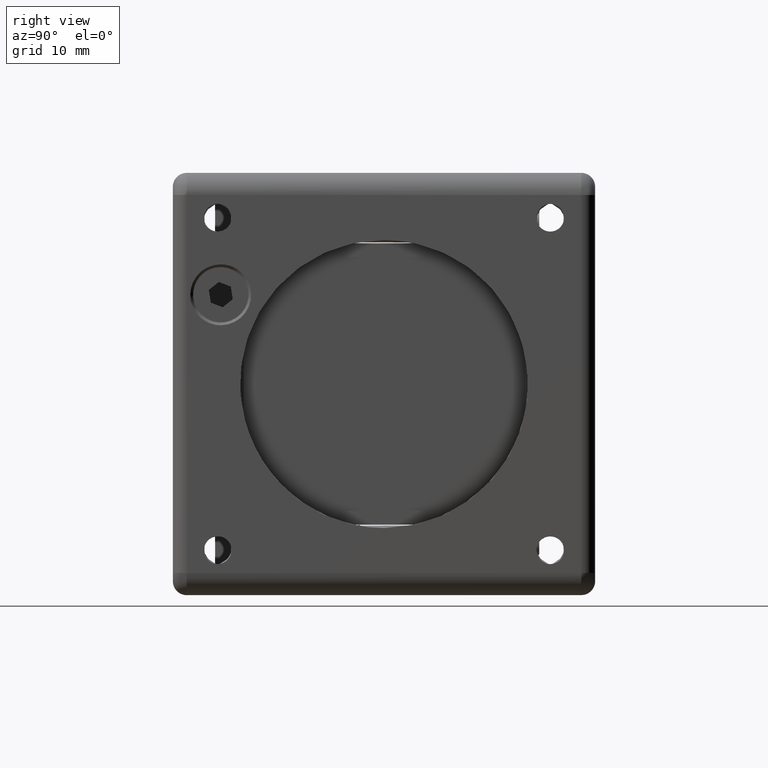
[diagram: clean part render]
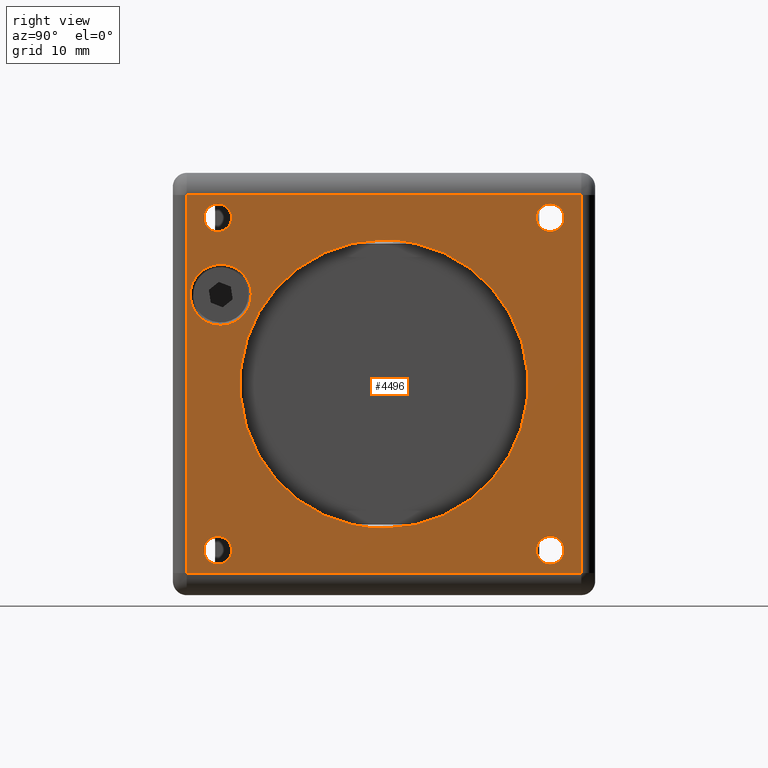
[diagram: same view with one face highlighted and labeled with its STEP entity id]
A machine part, right view. The second image highlights one B-rep face of the part: STEP entity #4496.
In plain terms, the highlighted face is a freeform B-spline surface patch.
Its self-contained STEP definition (entity closure, byte-faithful):
#53 = CARTESIAN_POINT ( 'NONE',  ( -310.8007940824679736, -4.194280474578479634, 55.14999999999999858 ) ) ;
#124 =( BOUNDED_CURVE ( )  B_SPLINE_CURVE ( 3, ( #5544, #6476, #1562, #6565 ),
 .UNSPECIFIED., .F., .F. ) 
 B_SPLINE_CURVE_WITH_KNOTS ( ( 4, 4 ),
 ( 0.000000000000000000, 1.000000000000000000 ),
 .UNSPECIFIED. ) 
 CURVE ( )  GEOMETRIC_REPRESENTATION_ITEM ( )  RATIONAL_B_SPLINE_CURVE ( ( 1.000000000000000000, 0.3333333333333329818, 0.3333333333333329818, 1.000000000000000000 ) ) 
 REPRESENTATION_ITEM ( '' )  );
#133 = FACE_BOUND ( 'NONE', #7682, .T. ) ;
#238 = EDGE_CURVE ( 'NONE', #7333, #3155, #4690, .T. ) ;
#248 = VERTEX_POINT ( 'NONE', #4404 ) ;
#271 = ORIENTED_EDGE ( 'NONE', *, *, #1703, .F. ) ;
#452 = ORIENTED_EDGE ( 'NONE', *, *, #8947, .F. ) ;
#454 =( BOUNDED_CURVE ( )  B_SPLINE_CURVE ( 3, ( #6399, #2153, #7972, #3747 ),
 .UNSPECIFIED., .F., .F. ) 
 B_SPLINE_CURVE_WITH_KNOTS ( ( 4, 4 ),
 ( 0.000000000000000000, 1.000000000000000000 ),
 .UNSPECIFIED. ) 
 CURVE ( )  GEOMETRIC_REPRESENTATION_ITEM ( )  RATIONAL_B_SPLINE_CURVE ( ( 1.000000000000000000, 0.3333333333333329818, 0.3333333333333329818, 1.000000000000000000 ) ) 
 REPRESENTATION_ITEM ( '' )  );
#483 =( BOUNDED_CURVE ( )  B_SPLINE_CURVE ( 3, ( #1865, #4816, #4034, #6859 ),
 .UNSPECIFIED., .F., .F. ) 
 B_SPLINE_CURVE_WITH_KNOTS ( ( 4, 4 ),
 ( 0.000000000000000000, 1.000000000000000000 ),
 .UNSPECIFIED. ) 
 CURVE ( )  GEOMETRIC_REPRESENTATION_ITEM ( )  RATIONAL_B_SPLINE_CURVE ( ( 1.000000000000000000, 0.3333333333333330373, 0.3333333333333330373, 1.000000000000000000 ) ) 
 REPRESENTATION_ITEM ( '' )  );
#516 = CARTESIAN_POINT ( 'NONE',  ( -310.8007940824682009, 26.08571952542150996, 51.85000000000025011 ) ) ;
#560 = CARTESIAN_POINT ( 'NONE',  ( -310.8007940824682009, 31.08571952542148864, 51.85000000000025011 ) ) ;
#591 = VERTEX_POINT ( 'NONE', #4769 ) ;
#871 = CARTESIAN_POINT ( 'NONE',  ( -310.8007940824679736, -1.414280474578490043, 24.34999999999959641 ) ) ;
#950 = CARTESIAN_POINT ( 'NONE',  ( -310.8007940824682009, -3.914280474578505586, 21.84999999999958931 ) ) ;
#1188 = CARTESIAN_POINT ( 'NONE',  ( -310.8007940824679736, -1.144280474578489804, 43.39999999999999858 ) ) ;
#1300 = EDGE_CURVE ( 'NONE', #7353, #591, #483, .T. ) ;
#1362 = EDGE_CURVE ( 'NONE', #1363, #4824, #7145, .T. ) ;
#1363 = VERTEX_POINT ( 'NONE', #2372 ) ;
#1420 = FACE_BOUND ( 'NONE', #6991, .T. ) ;
#1529 = CARTESIAN_POINT ( 'NONE',  ( -310.8007940824679736, 31.38571952542149646, 21.05000000000000071 ) ) ;
#1531 = CARTESIAN_POINT ( 'NONE',  ( -310.8007940824679736, -1.414280474578490043, 54.35000000000000142 ) ) ;
#1562 = CARTESIAN_POINT ( 'NONE',  ( -310.8007940824679736, -6.644280474578486029, 43.40000000000009805 ) ) ;
#1570 = ORIENTED_EDGE ( 'NONE', *, *, #9005, .F. ) ;
#1703 = EDGE_CURVE ( 'NONE', #4824, #2800, #8493, .T. ) ;
#1766 = CARTESIAN_POINT ( 'NONE',  ( -310.8007940824682009, 1.085719525421529941, 21.84999999999958931 ) ) ;
#1791 = ORIENTED_EDGE ( 'NONE', *, *, #7869, .F. ) ;
#1828 = CARTESIAN_POINT ( 'NONE',  ( -310.8007940824679736, -1.144280474578489804, 43.39999999999999858 ) ) ;
#1855 = B_SPLINE_CURVE_WITH_KNOTS ( 'NONE', 1,
 ( #2939, #53 ),
 .UNSPECIFIED., .F., .F.,
 ( 2, 2 ),
 ( -1.000000000000000000, 0.000000000000000000 ),
 .UNSPECIFIED. ) ;
#1865 = CARTESIAN_POINT ( 'NONE',  ( -310.8007940824679736, 28.58571952542149930, 24.34999999999959641 ) ) ;
#1931 = EDGE_CURVE ( 'NONE', #591, #7353, #5826, .T. ) ;
#1984 = EDGE_CURVE ( 'NONE', #3869, #4378, #124, .T. ) ;
#1995 = ORIENTED_EDGE ( 'NONE', *, *, #7356, .F. ) ;
#2018 = VERTEX_POINT ( 'NONE', #8044 ) ;
#2039 = EDGE_CURVE ( 'NONE', #2800, #4367, #1855, .T. ) ;
#2075 = CARTESIAN_POINT ( 'NONE',  ( -310.8007940824682009, 31.08571952542148864, 54.35000000000014353 ) ) ;
#2153 = CARTESIAN_POINT ( 'NONE',  ( -310.8007940824691104, -12.41428047457879025, 51.09999999999995168 ) ) ;
#2330 = CARTESIAN_POINT ( 'NONE',  ( -310.8007940824682009, 1.085719525421529941, 24.34999999999961418 ) ) ;
#2372 = CARTESIAN_POINT ( 'NONE',  ( -310.8007940824679736, 31.38571952542149646, 55.14999999999999858 ) ) ;
#2406 = CARTESIAN_POINT ( 'NONE',  ( -310.8007940824679736, -1.414280474578490043, 24.34999999999959641 ) ) ;
#2469 = CARTESIAN_POINT ( 'NONE',  ( -310.8007940824679736, 28.58571952542149930, 24.34999999999959641 ) ) ;
#2490 = B_SPLINE_SURFACE_WITH_KNOTS ( 'NONE', 1, 1, ( 
 ( #8560, #4281 ),
 ( #7814, #8644 ) ),
 .UNSPECIFIED., .F., .F., .F.,
 ( 2, 2 ),
 ( 2, 2 ),
 ( 0.000000000000000000, 1.000000000000000000 ),
 ( 0.000000000000000000, 1.000000000000000000 ),
 .UNSPECIFIED. ) ;
#2674 = CARTESIAN_POINT ( 'NONE',  ( -310.8007940824679736, 28.58571952542149930, 54.35000000000000142 ) ) ;
#2698 = CARTESIAN_POINT ( 'NONE',  ( -310.8007940824679736, 28.58571952542149930, 21.84999999999955023 ) ) ;
#2735 = CARTESIAN_POINT ( 'NONE',  ( -310.8007940824679736, 28.58571952542149930, 51.85000000000000142 ) ) ;
#2795 = CARTESIAN_POINT ( 'NONE',  ( -310.8007940824682009, 31.08571952542148864, 24.34999999999961418 ) ) ;
#2800 = VERTEX_POINT ( 'NONE', #8087 ) ;
#2804 = EDGE_CURVE ( 'NONE', #8557, #9094, #5883, .T. ) ;
#2862 = CARTESIAN_POINT ( 'NONE',  ( -310.8007940824679736, 31.38571952542149646, 21.05000000000000071 ) ) ;
#2939 = CARTESIAN_POINT ( 'NONE',  ( -310.8007940824679736, -4.194280474578479634, 21.05000000000000071 ) ) ;
#3026 =( BOUNDED_CURVE ( )  B_SPLINE_CURVE ( 3, ( #4461, #3764, #6194, #6148 ),
 .UNSPECIFIED., .F., .F. ) 
 B_SPLINE_CURVE_WITH_KNOTS ( ( 4, 4 ),
 ( 0.000000000000000000, 1.000000000000000000 ),
 .UNSPECIFIED. ) 
 CURVE ( )  GEOMETRIC_REPRESENTATION_ITEM ( )  RATIONAL_B_SPLINE_CURVE ( ( 1.000000000000000000, 0.3333333333333330373, 0.3333333333333330373, 1.000000000000000000 ) ) 
 REPRESENTATION_ITEM ( '' )  );
#3123 = CARTESIAN_POINT ( 'NONE',  ( -310.8007940824682009, -3.914280474578505586, 24.34999999999961418 ) ) ;
#3155 = VERTEX_POINT ( 'NONE', #7462 ) ;
#3264 = CARTESIAN_POINT ( 'NONE',  ( -310.8007940824679736, 28.58571952542149930, 54.35000000000000142 ) ) ;
#3279 = ORIENTED_EDGE ( 'NONE', *, *, #6731, .F. ) ;
#3374 = EDGE_LOOP ( 'NONE', ( #5366, #3279 ) ) ;
#3387 = VERTEX_POINT ( 'NONE', #1531 ) ;
#3493 = ORIENTED_EDGE ( 'NONE', *, *, #5746, .F. ) ;
#3698 = CARTESIAN_POINT ( 'NONE',  ( -310.8007940824679736, 31.38571952542149646, 55.14999999999999858 ) ) ;
#3701 = CARTESIAN_POINT ( 'NONE',  ( -310.8007940824684852, 13.58571952542149930, 25.09999999999859810 ) ) ;
#3747 = CARTESIAN_POINT ( 'NONE',  ( -310.8007940824684852, 13.58571952542149930, 25.09999999999859810 ) ) ;
#3764 = CARTESIAN_POINT ( 'NONE',  ( -310.8007940824682009, -3.914280474578524238, 54.35000000000014353 ) ) ;
#3869 = VERTEX_POINT ( 'NONE', #9104 ) ;
#3882 = EDGE_LOOP ( 'NONE', ( #6074, #452 ) ) ;
#4011 = EDGE_CURVE ( 'NONE', #3387, #2018, #3026, .T. ) ;
#4034 = CARTESIAN_POINT ( 'NONE',  ( -310.8007940824682009, 26.08571952542150996, 21.84999999999958931 ) ) ;
#4189 = CARTESIAN_POINT ( 'NONE',  ( -310.8007940824679736, -4.194280474578479634, 55.14999999999999858 ) ) ;
#4281 = CARTESIAN_POINT ( 'NONE',  ( -310.8007940824679736, -4.194280474578479634, 55.14999999999999858 ) ) ;
#4359 = CARTESIAN_POINT ( 'NONE',  ( -310.8007940824684852, 13.58571952542149930, 25.09999999999859810 ) ) ;
#4367 = VERTEX_POINT ( 'NONE', #4189 ) ;
#4378 = VERTEX_POINT ( 'NONE', #1188 ) ;
#4404 = CARTESIAN_POINT ( 'NONE',  ( -310.8007940824679736, 28.58571952542149930, 51.85000000000000142 ) ) ;
#4461 = CARTESIAN_POINT ( 'NONE',  ( -310.8007940824679736, -1.414280474578490043, 54.35000000000000142 ) ) ;
#4496 = ADVANCED_FACE ( 'NONE', ( #133, #6470, #6515, #5725, #8687, #1420, #5813 ), #2490, .T. ) ;
#4690 =( BOUNDED_CURVE ( )  B_SPLINE_CURVE ( 3, ( #4359, #7237, #5756, #8588 ),
 .UNSPECIFIED., .F., .F. ) 
 B_SPLINE_CURVE_WITH_KNOTS ( ( 4, 4 ),
 ( 0.000000000000000000, 1.000000000000000000 ),
 .UNSPECIFIED. ) 
 CURVE ( )  GEOMETRIC_REPRESENTATION_ITEM ( )  RATIONAL_B_SPLINE_CURVE ( ( 1.000000000000000000, 0.3333333333333329818, 0.3333333333333329818, 1.000000000000000000 ) ) 
 REPRESENTATION_ITEM ( '' )  );
#4769 = CARTESIAN_POINT ( 'NONE',  ( -310.8007940824679736, 28.58571952542149930, 21.84999999999955023 ) ) ;
#4816 = CARTESIAN_POINT ( 'NONE',  ( -310.8007940824682009, 26.08571952542150996, 24.34999999999961418 ) ) ;
#4824 = VERTEX_POINT ( 'NONE', #6674 ) ;
#4910 = ORIENTED_EDGE ( 'NONE', *, *, #1362, .F. ) ;
#4942 = CARTESIAN_POINT ( 'NONE',  ( -310.8007940824679736, 28.58571952542149930, 54.35000000000000142 ) ) ;
#5046 = CARTESIAN_POINT ( 'NONE',  ( -310.8007940824679736, 31.38571952542149646, 55.14999999999999858 ) ) ;
#5130 =( BOUNDED_CURVE ( )  B_SPLINE_CURVE ( 3, ( #2735, #560, #2075, #4942 ),
 .UNSPECIFIED., .F., .F. ) 
 B_SPLINE_CURVE_WITH_KNOTS ( ( 4, 4 ),
 ( 0.000000000000000000, 1.000000000000000000 ),
 .UNSPECIFIED. ) 
 CURVE ( )  GEOMETRIC_REPRESENTATION_ITEM ( )  RATIONAL_B_SPLINE_CURVE ( ( 1.000000000000000000, 0.3333333333333330373, 0.3333333333333330373, 1.000000000000000000 ) ) 
 REPRESENTATION_ITEM ( '' )  );
#5366 = ORIENTED_EDGE ( 'NONE', *, *, #238, .F. ) ;
#5374 = CARTESIAN_POINT ( 'NONE',  ( -310.8007940824679736, -1.414280474578490043, 24.34999999999959641 ) ) ;
#5404 = CARTESIAN_POINT ( 'NONE',  ( -310.8007940824679736, -1.414280474578490043, 54.35000000000000142 ) ) ;
#5535 = CARTESIAN_POINT ( 'NONE',  ( -310.8007940824683146, 1.085719525421540377, 54.35000000000015774 ) ) ;
#5544 = CARTESIAN_POINT ( 'NONE',  ( -310.8007940824679736, -1.144280474578484030, 48.89999999999999858 ) ) ;
#5616 = ORIENTED_EDGE ( 'NONE', *, *, #2039, .F. ) ;
#5725 = FACE_BOUND ( 'NONE', #7300, .T. ) ;
#5746 = EDGE_CURVE ( 'NONE', #4367, #1363, #6495, .T. ) ;
#5754 = EDGE_LOOP ( 'NONE', ( #1995, #6555 ) ) ;
#5756 = CARTESIAN_POINT ( 'NONE',  ( -310.8007940824691104, 39.58571952542175865, 51.09999999999995168 ) ) ;
#5801 =( BOUNDED_CURVE ( )  B_SPLINE_CURVE ( 3, ( #8320, #6099, #5535, #5404 ),
 .UNSPECIFIED., .F., .F. ) 
 B_SPLINE_CURVE_WITH_KNOTS ( ( 4, 4 ),
 ( 0.000000000000000000, 1.000000000000000000 ),
 .UNSPECIFIED. ) 
 CURVE ( )  GEOMETRIC_REPRESENTATION_ITEM ( )  RATIONAL_B_SPLINE_CURVE ( ( 1.000000000000000000, 0.3333333333333329818, 0.3333333333333329818, 1.000000000000000000 ) ) 
 REPRESENTATION_ITEM ( '' )  );
#5813 = FACE_OUTER_BOUND ( 'NONE', #7122, .T. ) ;
#5826 =( BOUNDED_CURVE ( )  B_SPLINE_CURVE ( 3, ( #2698, #6245, #2795, #9121 ),
 .UNSPECIFIED., .F., .F. ) 
 B_SPLINE_CURVE_WITH_KNOTS ( ( 4, 4 ),
 ( 0.000000000000000000, 1.000000000000000000 ),
 .UNSPECIFIED. ) 
 CURVE ( )  GEOMETRIC_REPRESENTATION_ITEM ( )  RATIONAL_B_SPLINE_CURVE ( ( 1.000000000000000000, 0.3333333333333330373, 0.3333333333333330373, 1.000000000000000000 ) ) 
 REPRESENTATION_ITEM ( '' )  );
#5843 = ORIENTED_EDGE ( 'NONE', *, *, #4011, .F. ) ;
#5881 = CARTESIAN_POINT ( 'NONE',  ( -310.8007940824679736, -1.414280474578490043, 21.84999999999959996 ) ) ;
#5883 =( BOUNDED_CURVE ( )  B_SPLINE_CURVE ( 3, ( #2406, #3123, #950, #8737 ),
 .UNSPECIFIED., .F., .F. ) 
 B_SPLINE_CURVE_WITH_KNOTS ( ( 4, 4 ),
 ( 0.000000000000000000, 1.000000000000000000 ),
 .UNSPECIFIED. ) 
 CURVE ( )  GEOMETRIC_REPRESENTATION_ITEM ( )  RATIONAL_B_SPLINE_CURVE ( ( 1.000000000000000000, 0.3333333333333330373, 0.3333333333333330373, 1.000000000000000000 ) ) 
 REPRESENTATION_ITEM ( '' )  );
#5897 = CARTESIAN_POINT ( 'NONE',  ( -310.8007940824678599, 4.355719525421734240, 48.90000000000021174 ) ) ;
#6033 = CARTESIAN_POINT ( 'NONE',  ( -310.8007940824679736, -1.144280474578484030, 48.89999999999999858 ) ) ;
#6040 = EDGE_CURVE ( 'NONE', #248, #7609, #5130, .T. ) ;
#6074 = ORIENTED_EDGE ( 'NONE', *, *, #6040, .F. ) ;
#6099 = CARTESIAN_POINT ( 'NONE',  ( -310.8007940824683146, 1.085719525421540377, 51.85000000000026432 ) ) ;
#6148 = CARTESIAN_POINT ( 'NONE',  ( -310.8007940824679736, -1.414280474578490043, 51.85000000000000142 ) ) ;
#6190 = CARTESIAN_POINT ( 'NONE',  ( -310.8007940824679736, -1.414280474578490043, 21.84999999999959996 ) ) ;
#6194 = CARTESIAN_POINT ( 'NONE',  ( -310.8007940824682009, -3.914280474578524238, 51.85000000000025011 ) ) ;
#6237 = CARTESIAN_POINT ( 'NONE',  ( -310.8007940824682009, 26.08571952542150996, 54.35000000000014353 ) ) ;
#6245 = CARTESIAN_POINT ( 'NONE',  ( -310.8007940824682009, 31.08571952542148864, 21.84999999999958931 ) ) ;
#6340 = CARTESIAN_POINT ( 'NONE',  ( -310.8007940824679736, -4.194280474578479634, 55.14999999999999858 ) ) ;
#6399 = CARTESIAN_POINT ( 'NONE',  ( -310.8007940824684852, 13.58571952542149930, 51.09999999999899956 ) ) ;
#6470 = FACE_BOUND ( 'NONE', #3374, .T. ) ;
#6476 = CARTESIAN_POINT ( 'NONE',  ( -310.8007940824679736, -6.644280474578503792, 48.90000000000011937 ) ) ;
#6495 = B_SPLINE_CURVE_WITH_KNOTS ( 'NONE', 1,
 ( #6340, #5046 ),
 .UNSPECIFIED., .F., .F.,
 ( 2, 2 ),
 ( 0.000000000000000000, 1.000000000000000000 ),
 .UNSPECIFIED. ) ;
#6515 = FACE_BOUND ( 'NONE', #3882, .T. ) ;
#6555 = ORIENTED_EDGE ( 'NONE', *, *, #2804, .F. ) ;
#6559 =( BOUNDED_CURVE ( )  B_SPLINE_CURVE ( 3, ( #5881, #1766, #2330, #871 ),
 .UNSPECIFIED., .F., .F. ) 
 B_SPLINE_CURVE_WITH_KNOTS ( ( 4, 4 ),
 ( 0.000000000000000000, 1.000000000000000000 ),
 .UNSPECIFIED. ) 
 CURVE ( )  GEOMETRIC_REPRESENTATION_ITEM ( )  RATIONAL_B_SPLINE_CURVE ( ( 1.000000000000000000, 0.3333333333333330373, 0.3333333333333330373, 1.000000000000000000 ) ) 
 REPRESENTATION_ITEM ( '' )  );
#6565 = CARTESIAN_POINT ( 'NONE',  ( -310.8007940824679736, -1.144280474578489804, 43.39999999999999858 ) ) ;
#6639 = ORIENTED_EDGE ( 'NONE', *, *, #1984, .F. ) ;
#6674 = CARTESIAN_POINT ( 'NONE',  ( -310.8007940824679736, 31.38571952542149646, 21.05000000000000071 ) ) ;
#6731 = EDGE_CURVE ( 'NONE', #3155, #7333, #454, .T. ) ;
#6859 = CARTESIAN_POINT ( 'NONE',  ( -310.8007940824679736, 28.58571952542149930, 21.84999999999955023 ) ) ;
#6991 = EDGE_LOOP ( 'NONE', ( #7277, #7385 ) ) ;
#7122 = EDGE_LOOP ( 'NONE', ( #4910, #3493, #5616, #271 ) ) ;
#7145 = B_SPLINE_CURVE_WITH_KNOTS ( 'NONE', 1,
 ( #3698, #1529 ),
 .UNSPECIFIED., .F., .F.,
 ( 2, 2 ),
 ( 0.000000000000000000, 1.000000000000000000 ),
 .UNSPECIFIED. ) ;
#7237 = CARTESIAN_POINT ( 'NONE',  ( -310.8007940824691104, 39.58571952542175865, 25.09999999999962128 ) ) ;
#7277 = ORIENTED_EDGE ( 'NONE', *, *, #1931, .F. ) ;
#7300 = EDGE_LOOP ( 'NONE', ( #1570, #5843 ) ) ;
#7333 = VERTEX_POINT ( 'NONE', #3701 ) ;
#7339 =( BOUNDED_CURVE ( )  B_SPLINE_CURVE ( 3, ( #3264, #6237, #516, #7670 ),
 .UNSPECIFIED., .F., .F. ) 
 B_SPLINE_CURVE_WITH_KNOTS ( ( 4, 4 ),
 ( 0.000000000000000000, 1.000000000000000000 ),
 .UNSPECIFIED. ) 
 CURVE ( )  GEOMETRIC_REPRESENTATION_ITEM ( )  RATIONAL_B_SPLINE_CURVE ( ( 1.000000000000000000, 0.3333333333333330373, 0.3333333333333330373, 1.000000000000000000 ) ) 
 REPRESENTATION_ITEM ( '' )  );
#7353 = VERTEX_POINT ( 'NONE', #2469 ) ;
#7356 = EDGE_CURVE ( 'NONE', #9094, #8557, #6559, .T. ) ;
#7385 = ORIENTED_EDGE ( 'NONE', *, *, #1300, .F. ) ;
#7462 = CARTESIAN_POINT ( 'NONE',  ( -310.8007940824684852, 13.58571952542149930, 51.09999999999899956 ) ) ;
#7513 = CARTESIAN_POINT ( 'NONE',  ( -310.8007940824678599, 4.355719525421718252, 43.40000000000000568 ) ) ;
#7609 = VERTEX_POINT ( 'NONE', #2674 ) ;
#7670 = CARTESIAN_POINT ( 'NONE',  ( -310.8007940824679736, 28.58571952542149930, 51.85000000000000142 ) ) ;
#7682 = EDGE_LOOP ( 'NONE', ( #1791, #6639 ) ) ;
#7814 = CARTESIAN_POINT ( 'NONE',  ( -310.8007940824679736, 31.38571952542149646, 21.05000000000000071 ) ) ;
#7837 = CARTESIAN_POINT ( 'NONE',  ( -310.8007940824679736, -4.194280474578479634, 21.05000000000000071 ) ) ;
#7869 = EDGE_CURVE ( 'NONE', #4378, #3869, #8103, .T. ) ;
#7972 = CARTESIAN_POINT ( 'NONE',  ( -310.8007940824691104, -12.41428047457879025, 25.09999999999962128 ) ) ;
#8044 = CARTESIAN_POINT ( 'NONE',  ( -310.8007940824679736, -1.414280474578490043, 51.85000000000000142 ) ) ;
#8087 = CARTESIAN_POINT ( 'NONE',  ( -310.8007940824679736, -4.194280474578479634, 21.05000000000000071 ) ) ;
#8103 =( BOUNDED_CURVE ( )  B_SPLINE_CURVE ( 3, ( #1828, #7513, #5897, #6033 ),
 .UNSPECIFIED., .F., .F. ) 
 B_SPLINE_CURVE_WITH_KNOTS ( ( 4, 4 ),
 ( 0.000000000000000000, 1.000000000000000000 ),
 .UNSPECIFIED. ) 
 CURVE ( )  GEOMETRIC_REPRESENTATION_ITEM ( )  RATIONAL_B_SPLINE_CURVE ( ( 1.000000000000000000, 0.3333333333333329818, 0.3333333333333329818, 1.000000000000000000 ) ) 
 REPRESENTATION_ITEM ( '' )  );
#8320 = CARTESIAN_POINT ( 'NONE',  ( -310.8007940824679736, -1.414280474578490043, 51.85000000000000142 ) ) ;
#8493 = B_SPLINE_CURVE_WITH_KNOTS ( 'NONE', 1,
 ( #2862, #7837 ),
 .UNSPECIFIED., .F., .F.,
 ( 2, 2 ),
 ( 0.000000000000000000, 1.000000000000000000 ),
 .UNSPECIFIED. ) ;
#8557 = VERTEX_POINT ( 'NONE', #5374 ) ;
#8560 = CARTESIAN_POINT ( 'NONE',  ( -310.8007940824679736, -4.194280474578479634, 21.05000000000000071 ) ) ;
#8588 = CARTESIAN_POINT ( 'NONE',  ( -310.8007940824684852, 13.58571952542149930, 51.09999999999899956 ) ) ;
#8644 = CARTESIAN_POINT ( 'NONE',  ( -310.8007940824679736, 31.38571952542149646, 55.14999999999999858 ) ) ;
#8687 = FACE_BOUND ( 'NONE', #5754, .T. ) ;
#8737 = CARTESIAN_POINT ( 'NONE',  ( -310.8007940824679736, -1.414280474578490043, 21.84999999999959996 ) ) ;
#8947 = EDGE_CURVE ( 'NONE', #7609, #248, #7339, .T. ) ;
#9005 = EDGE_CURVE ( 'NONE', #2018, #3387, #5801, .T. ) ;
#9094 = VERTEX_POINT ( 'NONE', #6190 ) ;
#9104 = CARTESIAN_POINT ( 'NONE',  ( -310.8007940824679736, -1.144280474578484030, 48.89999999999999858 ) ) ;
#9121 = CARTESIAN_POINT ( 'NONE',  ( -310.8007940824679736, 28.58571952542149930, 24.34999999999959641 ) ) ;